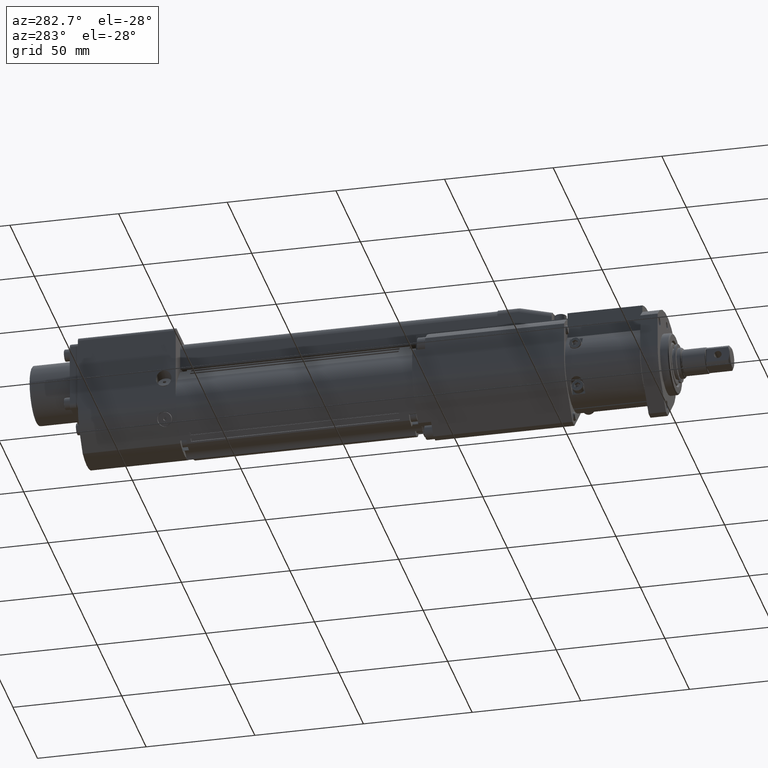
[diagram: clean part render]
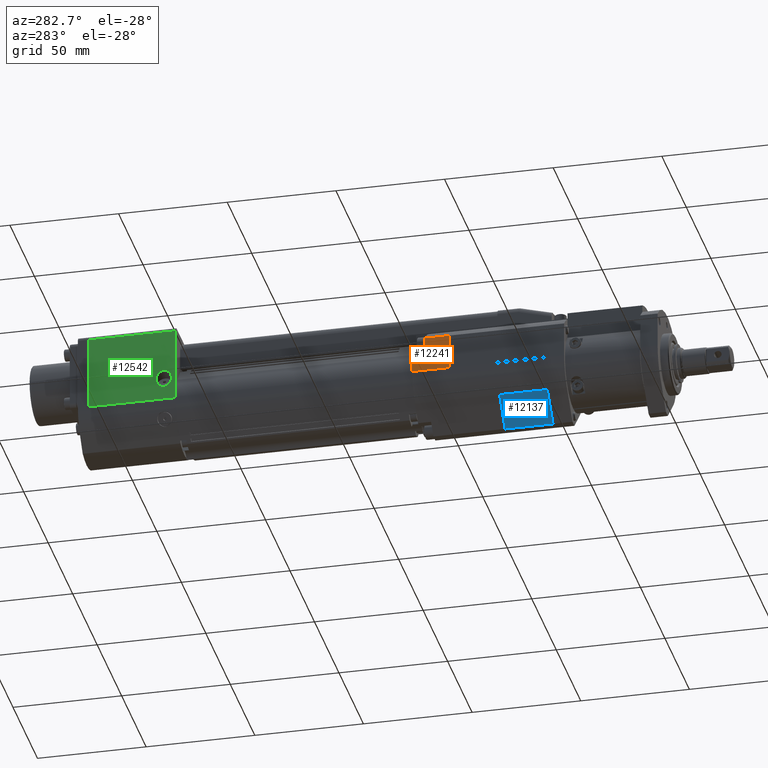
[diagram: same view with three faces highlighted in distinct colors, each labeled with its STEP entity id]
A machine part, auxiliary view with three faces highlighted in distinct colors.
Their STEP definitions:

[orange] entity #12241 — the highlighted planar face has unit normal (-1, 0, 0).
#1275=FACE_OUTER_BOUND('',#2030,.T.);
#2030=EDGE_LOOP('',(#8557,#8558,#8559,#8560,#8561,#8562));
#2727=LINE('',#18364,#3761);
#2937=LINE('',#19135,#3971);
#2940=LINE('',#19146,#3974);
#2941=LINE('',#19148,#3975);
#2942=LINE('',#19149,#3976);
#2943=LINE('',#19150,#3977);
#3761=VECTOR('',#14680,10.);
#3971=VECTOR('',#15246,10.);
#3974=VECTOR('',#15257,10.);
#3975=VECTOR('',#15258,10.);
#3976=VECTOR('',#15259,10.);
#3977=VECTOR('',#15260,10.);
#4918=VERTEX_POINT('',#18354);
#4922=VERTEX_POINT('',#18363);
#5142=VERTEX_POINT('',#19134);
#5145=VERTEX_POINT('',#19144);
#5146=VERTEX_POINT('',#19145);
#5147=VERTEX_POINT('',#19147);
#6101=EDGE_CURVE('',#4922,#4918,#2727,.T.);
#6420=EDGE_CURVE('',#4918,#5142,#2937,.T.);
#6425=EDGE_CURVE('',#5145,#5146,#2940,.T.);
#6426=EDGE_CURVE('',#5146,#5147,#2941,.T.);
#6427=EDGE_CURVE('',#5142,#5147,#2942,.T.);
#6428=EDGE_CURVE('',#4922,#5145,#2943,.T.);
#8557=ORIENTED_EDGE('',*,*,#6425,.T.);
#8558=ORIENTED_EDGE('',*,*,#6426,.T.);
#8559=ORIENTED_EDGE('',*,*,#6427,.F.);
#8560=ORIENTED_EDGE('',*,*,#6420,.F.);
#8561=ORIENTED_EDGE('',*,*,#6101,.F.);
#8562=ORIENTED_EDGE('',*,*,#6428,.T.);
#11033=PLANE('',#13200);
#12241=ADVANCED_FACE('',(#1275),#11033,.T.);
#13200=AXIS2_PLACEMENT_3D('',#19143,#15255,#15256);
#14680=DIRECTION('',(-2.66084184394457E-11,-1.30163557121652E-42,-1.));
#15246=DIRECTION('',(1.12268165861094E-31,1.,-4.28891390587759E-42));
#15255=DIRECTION('center_axis',(-1.,1.12268165861094E-31,2.66084184394457E-11));
#15256=DIRECTION('ref_axis',(2.66084184394457E-11,1.30163557121652E-42,
1.));
#15257=DIRECTION('',(-2.66084184394457E-11,-1.30163557121652E-42,-1.));
#15258=DIRECTION('',(1.12268165861094E-31,1.,-4.28891390587759E-42));
#15259=DIRECTION('',(2.66084184394457E-11,1.30163557121652E-42,1.));
#15260=DIRECTION('',(1.12268165861094E-31,1.,-4.28891390587759E-42));
#18354=CARTESIAN_POINT('',(-19.,100.,5.0556254687061E-10));
#18363=CARTESIAN_POINT('',(-18.9999999995677,100.,16.2480768097775));
#18364=CARTESIAN_POINT('',(-18.9999999995677,100.,16.2480768097775));
#19134=CARTESIAN_POINT('',(-19.,117.,5.0556254687061E-10));
#19135=CARTESIAN_POINT('',(-19.,100.,5.0556254687061E-10));
#19143=CARTESIAN_POINT('Origin',(-19.,100.,5.0556254687061E-10));
#19144=CARTESIAN_POINT('',(-18.9999999995677,111.,16.2480768097775));
#19145=CARTESIAN_POINT('',(-18.9999999997126,111.,10.8000000005056));
#19146=CARTESIAN_POINT('',(-18.9999999997895,111.,7.9100416779094));
#19147=CARTESIAN_POINT('',(-18.9999999997126,117.,10.8000000005056));
#19148=CARTESIAN_POINT('',(-18.9999999997126,108.5,10.8000000005056));
#19149=CARTESIAN_POINT('',(-18.9999999995677,117.,16.2480768097775));
#19150=CARTESIAN_POINT('',(-18.9999999995677,100.,16.2480768097775));

[blue] entity #12137 — the highlighted planar face has unit normal (0.7071, 0, 0.7071).
#1171=FACE_OUTER_BOUND('',#1917,.T.);
#1917=EDGE_LOOP('',(#8033,#8034,#8035,#8036));
#2732=LINE('',#18373,#3766);
#2763=LINE('',#18451,#3797);
#2764=LINE('',#18453,#3798);
#2765=LINE('',#18454,#3799);
#3766=VECTOR('',#14687,10.);
#3797=VECTOR('',#14754,10.);
#3798=VECTOR('',#14755,10.);
#3799=VECTOR('',#14756,10.);
#4920=VERTEX_POINT('',#18357);
#4925=VERTEX_POINT('',#18371);
#4954=VERTEX_POINT('',#18450);
#4955=VERTEX_POINT('',#18452);
#6106=EDGE_CURVE('',#4925,#4920,#2732,.T.);
#6145=EDGE_CURVE('',#4954,#4925,#2763,.T.);
#6146=EDGE_CURVE('',#4954,#4955,#2764,.T.);
#6147=EDGE_CURVE('',#4955,#4920,#2765,.T.);
#8033=ORIENTED_EDGE('',*,*,#6106,.F.);
#8034=ORIENTED_EDGE('',*,*,#6145,.F.);
#8035=ORIENTED_EDGE('',*,*,#6146,.T.);
#8036=ORIENTED_EDGE('',*,*,#6147,.T.);
#10957=PLANE('',#13037);
#12137=ADVANCED_FACE('',(#1171),#10957,.F.);
#13037=AXIS2_PLACEMENT_3D('',#18449,#14752,#14753);
#14687=DIRECTION('',(-0.707106781186547,0.,0.707106781186548));
#14752=DIRECTION('center_axis',(0.707106781186548,0.,0.707106781186547));
#14753=DIRECTION('ref_axis',(0.707106781186547,0.,-0.707106781186548));
#14754=DIRECTION('',(0.,1.,0.));
#14755=DIRECTION('',(-0.707106781186547,0.,0.707106781186548));
#14756=DIRECTION('',(0.,1.,0.));
#18357=CARTESIAN_POINT('',(-13.4350288425444,78.,-13.4350288425444));
#18371=CARTESIAN_POINT('',(-1.94590354946835,78.,-24.9241541356205));
#18373=CARTESIAN_POINT('',(-17.8100288425444,78.,-9.0600288425444));
#18449=CARTESIAN_POINT('Origin',(-13.4350288425444,56.,-13.4350288425444));
#18450=CARTESIAN_POINT('',(-1.94590354946837,56.,-24.9241541356205));
#18451=CARTESIAN_POINT('',(-1.94590354946836,67.,-24.9241541356205));
#18452=CARTESIAN_POINT('',(-13.4350288425444,56.,-13.4350288425444));
#18453=CARTESIAN_POINT('',(-17.8100288425444,56.,-9.06002884254438));
#18454=CARTESIAN_POINT('',(-13.4350288425444,56.,-13.4350288425444));

[green] entity #12542 — the highlighted planar face has unit normal (-1, 0, 0).
#43=ELLIPSE('',#13667,4.04145188432738,3.5);
#290=FACE_BOUND('',#2361,.T.);
#1576=FACE_OUTER_BOUND('',#2360,.T.);
#2360=EDGE_LOOP('',(#10027,#10028,#10029,#10030));
#2361=EDGE_LOOP('',(#10031));
#2825=LINE('',#18706,#3859);
#3416=LINE('',#20645,#4450);
#3417=LINE('',#20647,#4451);
#3418=LINE('',#20648,#4452);
#3859=VECTOR('',#14934,10.);
#4450=VECTOR('',#16665,10.);
#4451=VECTOR('',#16666,10.);
#4452=VECTOR('',#16667,10.);
#5024=VERTEX_POINT('',#18703);
#5025=VERTEX_POINT('',#18705);
#5540=VERTEX_POINT('',#20644);
#5541=VERTEX_POINT('',#20646);
#5542=VERTEX_POINT('',#20649);
#6248=EDGE_CURVE('',#5024,#5025,#2825,.T.);
#7110=EDGE_CURVE('',#5024,#5540,#3416,.T.);
#7111=EDGE_CURVE('',#5541,#5540,#3417,.T.);
#7112=EDGE_CURVE('',#5025,#5541,#3418,.T.);
#7113=EDGE_CURVE('',#5542,#5542,#43,.T.);
#10027=ORIENTED_EDGE('',*,*,#6248,.F.);
#10028=ORIENTED_EDGE('',*,*,#7110,.T.);
#10029=ORIENTED_EDGE('',*,*,#7111,.F.);
#10030=ORIENTED_EDGE('',*,*,#7112,.F.);
#10031=ORIENTED_EDGE('',*,*,#7113,.T.);
#11236=PLANE('',#13666);
#12542=ADVANCED_FACE('',(#1576,#290),#11236,.T.);
#13666=AXIS2_PLACEMENT_3D('',#20643,#16663,#16664);
#13667=AXIS2_PLACEMENT_3D('',#20650,#16668,#16669);
#14934=DIRECTION('',(-4.1633363425059E-17,-2.80661733741623E-17,-1.));
#16663=DIRECTION('center_axis',(-1.,4.10196026886766E-16,4.16333634250589E-17));
#16664=DIRECTION('ref_axis',(4.1633363425059E-17,2.80661733741623E-17,1.));
#16665=DIRECTION('',(4.10196026886766E-16,1.,-2.80661733741623E-17));
#16666=DIRECTION('',(4.1633363425059E-17,2.80661733741623E-17,1.));
#16667=DIRECTION('',(4.10196026886766E-16,1.,-2.80661733741623E-17));
#16668=DIRECTION('center_axis',(1.,-4.10196026886766E-16,-4.16333634250589E-17));
#16669=DIRECTION('ref_axis',(-4.1633363425059E-17,-2.80661733741623E-17,
-1.));
#18703=CARTESIAN_POINT('',(-17.9999999998962,226.,33.9999999993072));
#18705=CARTESIAN_POINT('',(-17.9999999998962,226.,-6.95062729549516E-10));
#18706=CARTESIAN_POINT('',(-17.9999999998962,226.,33.9999999993072));
#20643=CARTESIAN_POINT('Origin',(-17.9999999998962,226.,-6.95062729549516E-10));
#20644=CARTESIAN_POINT('',(-17.9999999998962,266.,33.9999999993072));
#20645=CARTESIAN_POINT('',(-17.9999999998962,226.,33.9999999993072));
#20646=CARTESIAN_POINT('',(-17.9999999998962,266.,-6.95063852196451E-10));
#20647=CARTESIAN_POINT('',(-17.9999999998962,266.,33.9999999993072));
#20648=CARTESIAN_POINT('',(-17.9999999998962,226.,-6.95062729549516E-10));
#20649=CARTESIAN_POINT('',(-17.9999999998962,231.5,14.4337567291004));
#20650=CARTESIAN_POINT('Origin',(-17.9999999998962,231.5,10.392304844773));